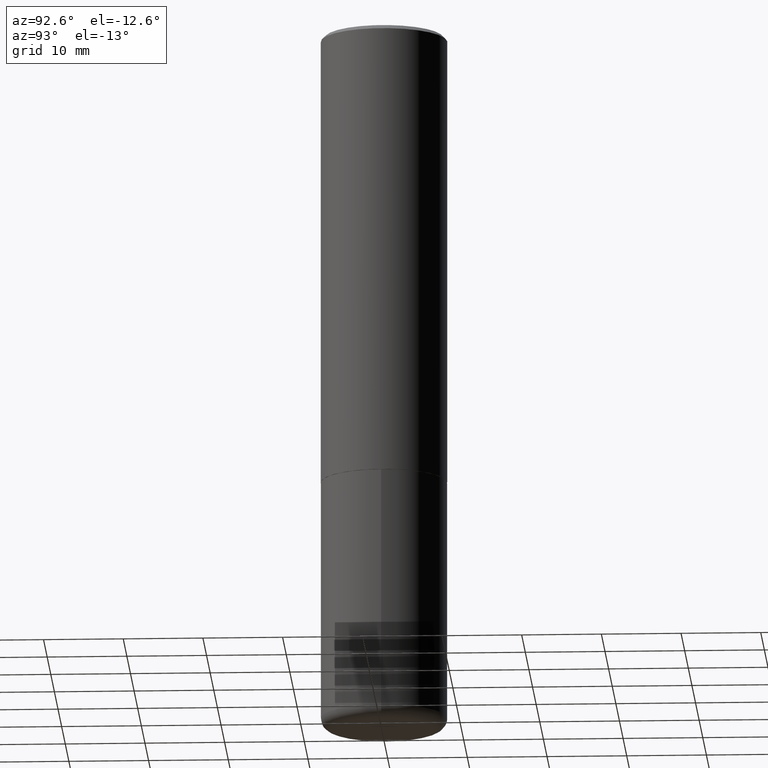
[diagram: clean part render]
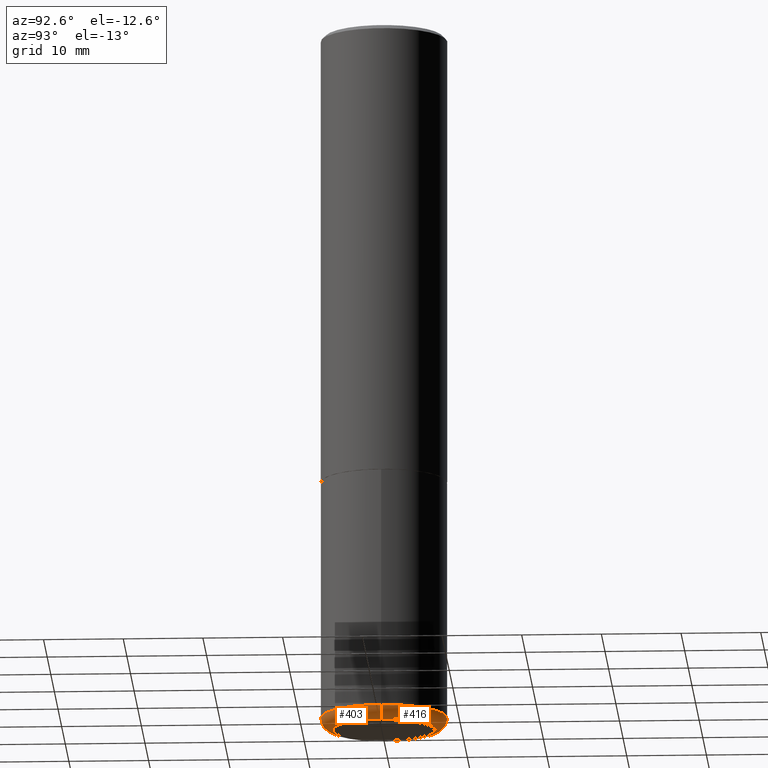
[diagram: same view with one multi-face feature highlighted, each face labeled with its STEP entity id]
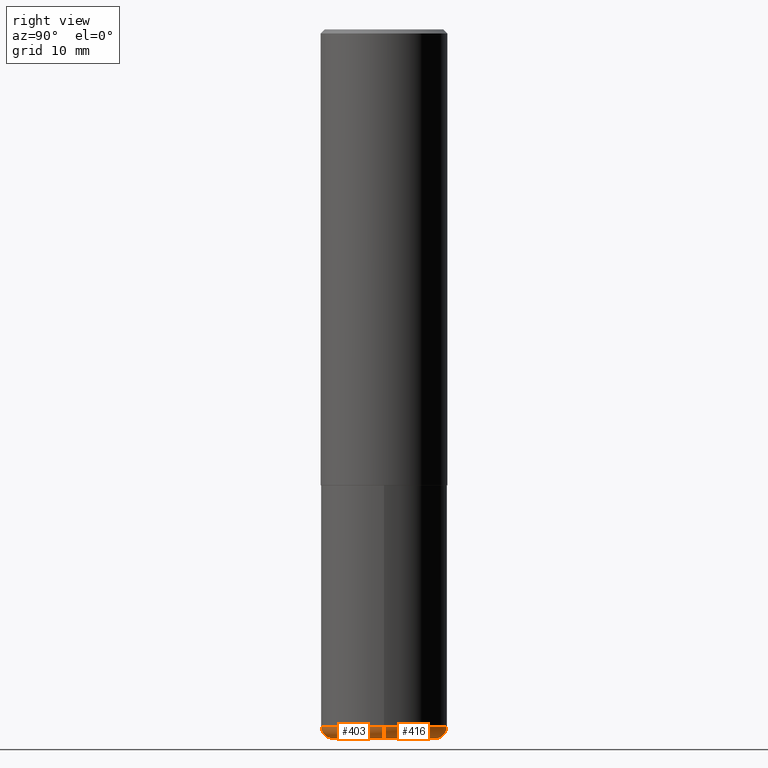
[diagram: same view with one multi-face feature highlighted, each face labeled with its STEP entity id]
A machine part, auxiliary view. The highlighted faces form ONE feature: a constant-radius fillet chain: 2 tangent blend faces with common blend radius 1.524 mm. The faces share edges in the B-rep.
A second angle (right view) of the same feature is appended — it is thin or edge-on in the first view.
Their STEP definitions:
[1] entity #416 (Torus):
#5 = VERTEX_POINT ( 'NONE', #163 ) ;
#22 = ORIENTED_EDGE ( 'NONE', *, *, #147, .F. ) ;
#24 = VERTEX_POINT ( 'NONE', #336 ) ;
#43 = CARTESIAN_POINT ( 'NONE',  ( 8.559140821647976968E-29, -1.222018468595100934E-14, -3.500000000000000000 ) ) ;
#56 = DIRECTION ( 'NONE',  ( -1.000000000000000000, 7.105427357600997914E-15, 0.000000000000000000 ) ) ;
#63 = EDGE_CURVE ( 'NONE', #371, #5, #148, .T. ) ;
#75 = AXIS2_PLACEMENT_3D ( 'NONE', #133, #127, #382 ) ;
#86 = TOROIDAL_SURFACE ( 'NONE', #154, 0.2525000000000000022, 0.05999999999999995615 ) ;
#99 = ORIENTED_EDGE ( 'NONE', *, *, #357, .F. ) ;
#111 = CARTESIAN_POINT ( 'NONE',  ( 8.412412693276869938E-29, -1.201069580562042103E-14, -3.439999999999999947 ) ) ;
#127 = DIRECTION ( 'NONE',  ( -2.445468806185136597E-29, 3.491481338843145583E-15, 1.000000000000000000 ) ) ;
#128 = DIRECTION ( 'NONE',  ( -6.982962677686266711E-15, -1.000000000000000000, 3.491481338843145583E-15 ) ) ;
#133 = CARTESIAN_POINT ( 'NONE',  ( 8.412412693276869938E-29, -1.201069580562042103E-14, -3.439999999999999947 ) ) ;
#137 = CIRCLE ( 'NONE', #168, 0.05999999999999994227 ) ;
#138 = VERTEX_POINT ( 'NONE', #161 ) ;
#147 = EDGE_CURVE ( 'NONE', #24, #138, #210, .T. ) ;
#148 = CIRCLE ( 'NONE', #373, 0.2525000000000000022 ) ;
#150 = ORIENTED_EDGE ( 'NONE', *, *, #63, .T. ) ;
#154 = AXIS2_PLACEMENT_3D ( 'NONE', #111, #363, #281 ) ;
#157 = EDGE_CURVE ( 'NONE', #5, #138, #323, .T. ) ;
#161 = CARTESIAN_POINT ( 'NONE',  ( -0.3125000000000000000, -9.790249756370107944E-15, -3.439999999999999947 ) ) ;
#163 = CARTESIAN_POINT ( 'NONE',  ( -0.2525000000000000022, -1.010815701726343156E-14, -3.500000000000000000 ) ) ;
#168 = AXIS2_PLACEMENT_3D ( 'NONE', #296, #128, #407 ) ;
#191 = DIRECTION ( 'NONE',  ( -2.445468806185136597E-29, 3.491481338843145583E-15, 1.000000000000000000 ) ) ;
#193 = DIRECTION ( 'NONE',  ( 1.000000000000000000, -6.982962677686269866E-15, 0.000000000000000000 ) ) ;
#196 = AXIS2_PLACEMENT_3D ( 'NONE', #257, #286, #56 ) ;
#208 = EDGE_LOOP ( 'NONE', ( #150, #272, #22, #99 ) ) ;
#210 = CIRCLE ( 'NONE', #75, 0.3125000000000000000 ) ;
#221 = FACE_OUTER_BOUND ( 'NONE', #208, .T. ) ;
#257 = CARTESIAN_POINT ( 'NONE',  ( -0.2525000000000000022, -1.021657539782616686E-14, -3.439999999999999947 ) ) ;
#272 = ORIENTED_EDGE ( 'NONE', *, *, #157, .T. ) ;
#281 = DIRECTION ( 'NONE',  ( 1.000000000000000000, -6.982962677686264344E-15, 4.883557194083112340E-29 ) ) ;
#286 = DIRECTION ( 'NONE',  ( 7.105427357601001859E-15, 1.000000000000000000, -3.491481338843145583E-15 ) ) ;
#296 = CARTESIAN_POINT ( 'NONE',  ( 0.2525000000000000022, -1.377389388173620432E-14, -3.439999999999999947 ) ) ;
#323 = CIRCLE ( 'NONE', #196, 0.05999999999999994227 ) ;
#336 = CARTESIAN_POINT ( 'NONE',  ( 0.3125000000000000000, -1.419287164239737937E-14, -3.439999999999999947 ) ) ;
#357 = EDGE_CURVE ( 'NONE', #371, #24, #137, .T. ) ;
#363 = DIRECTION ( 'NONE',  ( -2.445468806185136597E-29, 3.491481338843145583E-15, 1.000000000000000000 ) ) ;
#371 = VERTEX_POINT ( 'NONE', #384 ) ;
#373 = AXIS2_PLACEMENT_3D ( 'NONE', #43, #191, #193 ) ;
#382 = DIRECTION ( 'NONE',  ( 1.000000000000000000, -6.982962677686269077E-15, 0.000000000000000000 ) ) ;
#384 = CARTESIAN_POINT ( 'NONE',  ( 0.2525000000000000022, -1.398338276206679106E-14, -3.500000000000000000 ) ) ;
#407 = DIRECTION ( 'NONE',  ( 1.000000000000000000, -6.982962677686274599E-15, 0.000000000000000000 ) ) ;
#416 = ADVANCED_FACE ( 'NONE', ( #221 ), #86, .T. ) ;
[2] entity #403 (Torus):
#5 = VERTEX_POINT ( 'NONE', #163 ) ;
#24 = VERTEX_POINT ( 'NONE', #336 ) ;
#25 = DIRECTION ( 'NONE',  ( -2.445468806185136597E-29, 3.491481338843145583E-15, 1.000000000000000000 ) ) ;
#32 = ORIENTED_EDGE ( 'NONE', *, *, #93, .T. ) ;
#56 = DIRECTION ( 'NONE',  ( -1.000000000000000000, 7.105427357600997914E-15, 0.000000000000000000 ) ) ;
#65 = CIRCLE ( 'NONE', #288, 0.2525000000000000022 ) ;
#93 = EDGE_CURVE ( 'NONE', #5, #371, #65, .T. ) ;
#119 = DIRECTION ( 'NONE',  ( -2.445468806185136597E-29, 3.491481338843145583E-15, 1.000000000000000000 ) ) ;
#122 = CARTESIAN_POINT ( 'NONE',  ( 8.559140821647976968E-29, -1.222018468595100934E-14, -3.500000000000000000 ) ) ;
#128 = DIRECTION ( 'NONE',  ( -6.982962677686266711E-15, -1.000000000000000000, 3.491481338843145583E-15 ) ) ;
#137 = CIRCLE ( 'NONE', #168, 0.05999999999999994227 ) ;
#138 = VERTEX_POINT ( 'NONE', #161 ) ;
#152 = CARTESIAN_POINT ( 'NONE',  ( 8.412412693276869938E-29, -1.201069580562042103E-14, -3.439999999999999947 ) ) ;
#157 = EDGE_CURVE ( 'NONE', #5, #138, #323, .T. ) ;
#161 = CARTESIAN_POINT ( 'NONE',  ( -0.3125000000000000000, -9.790249756370107944E-15, -3.439999999999999947 ) ) ;
#163 = CARTESIAN_POINT ( 'NONE',  ( -0.2525000000000000022, -1.010815701726343156E-14, -3.500000000000000000 ) ) ;
#168 = AXIS2_PLACEMENT_3D ( 'NONE', #296, #128, #407 ) ;
#187 = DIRECTION ( 'NONE',  ( 1.000000000000000000, -6.982962677686269866E-15, 0.000000000000000000 ) ) ;
#196 = AXIS2_PLACEMENT_3D ( 'NONE', #257, #286, #56 ) ;
#199 = DIRECTION ( 'NONE',  ( 1.000000000000000000, -6.982962677686269077E-15, 0.000000000000000000 ) ) ;
#204 = EDGE_CURVE ( 'NONE', #138, #24, #381, .T. ) ;
#207 = DIRECTION ( 'NONE',  ( 1.000000000000000000, -6.982962677686264344E-15, 4.883557194083112340E-29 ) ) ;
#228 = CARTESIAN_POINT ( 'NONE',  ( 8.412412693276869938E-29, -1.201069580562042103E-14, -3.439999999999999947 ) ) ;
#243 = ORIENTED_EDGE ( 'NONE', *, *, #157, .F. ) ;
#257 = CARTESIAN_POINT ( 'NONE',  ( -0.2525000000000000022, -1.021657539782616686E-14, -3.439999999999999947 ) ) ;
#276 = ORIENTED_EDGE ( 'NONE', *, *, #357, .T. ) ;
#286 = DIRECTION ( 'NONE',  ( 7.105427357601001859E-15, 1.000000000000000000, -3.491481338843145583E-15 ) ) ;
#288 = AXIS2_PLACEMENT_3D ( 'NONE', #122, #319, #187 ) ;
#294 = FACE_OUTER_BOUND ( 'NONE', #395, .T. ) ;
#296 = CARTESIAN_POINT ( 'NONE',  ( 0.2525000000000000022, -1.377389388173620432E-14, -3.439999999999999947 ) ) ;
#312 = TOROIDAL_SURFACE ( 'NONE', #332, 0.2525000000000000022, 0.05999999999999995615 ) ;
#319 = DIRECTION ( 'NONE',  ( -2.445468806185136597E-29, 3.491481338843145583E-15, 1.000000000000000000 ) ) ;
#323 = CIRCLE ( 'NONE', #196, 0.05999999999999994227 ) ;
#325 = AXIS2_PLACEMENT_3D ( 'NONE', #228, #119, #199 ) ;
#332 = AXIS2_PLACEMENT_3D ( 'NONE', #152, #25, #207 ) ;
#336 = CARTESIAN_POINT ( 'NONE',  ( 0.3125000000000000000, -1.419287164239737937E-14, -3.439999999999999947 ) ) ;
#357 = EDGE_CURVE ( 'NONE', #371, #24, #137, .T. ) ;
#367 = ORIENTED_EDGE ( 'NONE', *, *, #204, .F. ) ;
#371 = VERTEX_POINT ( 'NONE', #384 ) ;
#381 = CIRCLE ( 'NONE', #325, 0.3125000000000000000 ) ;
#384 = CARTESIAN_POINT ( 'NONE',  ( 0.2525000000000000022, -1.398338276206679106E-14, -3.500000000000000000 ) ) ;
#395 = EDGE_LOOP ( 'NONE', ( #243, #32, #276, #367 ) ) ;
#403 = ADVANCED_FACE ( 'NONE', ( #294 ), #312, .T. ) ;
#407 = DIRECTION ( 'NONE',  ( 1.000000000000000000, -6.982962677686274599E-15, 0.000000000000000000 ) ) ;